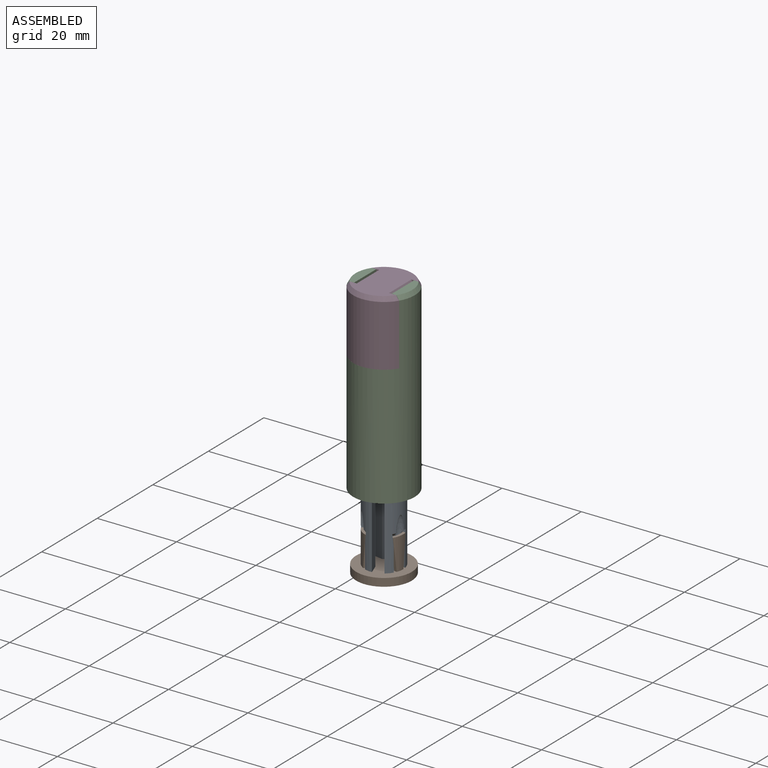
[diagram: assembled view]
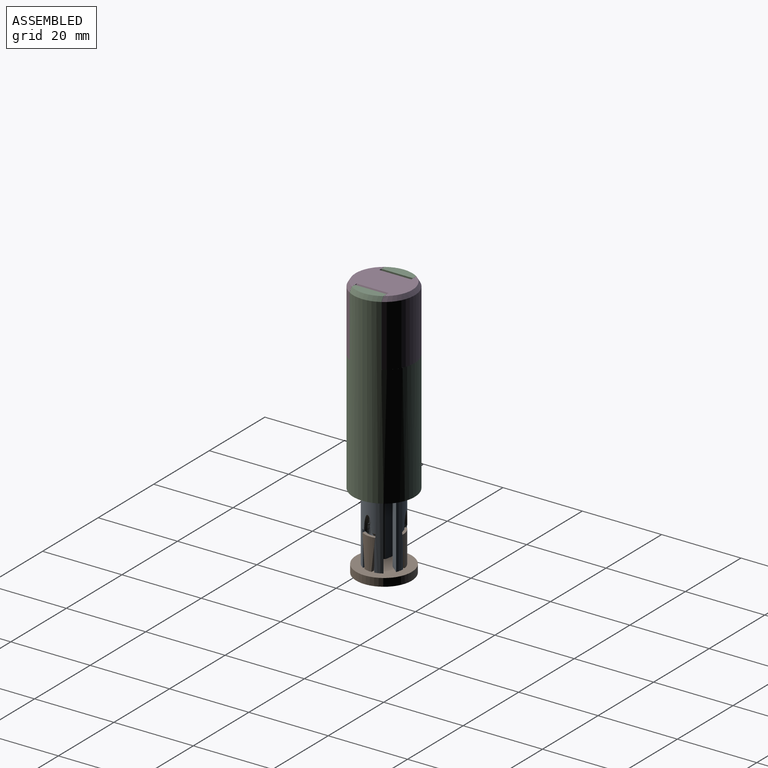
[diagram: assembled view, second angle]
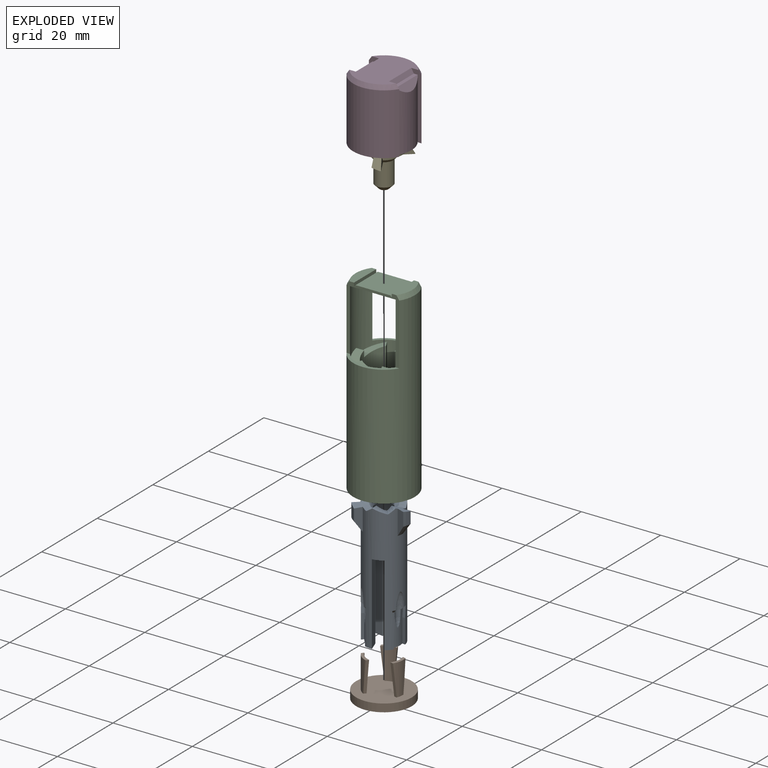
[diagram: exploded view]
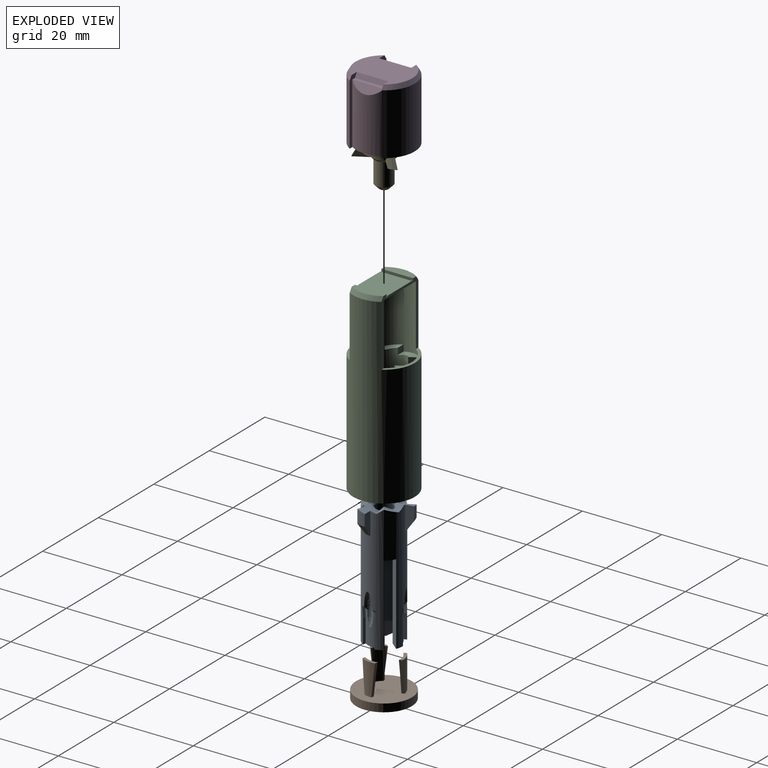
[diagram: exploded view, second angle]
ASSEMBLY  parts=5 mates=4
PART A: 75 faces, bbox 16.7x16x32.9 mm
  f0: cone r=6.78mm half-angle=35deg, axis (0,0,1), area 6.3mm2, adj f1,f2,f3,f10
  f1: cylinder r=6.78mm len=3.39mm, axis (0,0,-1), area 6.7mm2, adj f0,f2,f3,f4
  f2: plane 5.72x1.81mm, normal (-0.41,0.91,0), area 8.5mm2, adj f0,f1,f4,f10
  f3: plane 6.22x1.97mm, normal (0.1,-0.99,0), area 9.5mm2, adj f0,f1,f4,f10
  f4: bspline ~6.75x5.91mm, area 8.7mm2, adj f1,f2,f3,f10,f11,f12,f13,f15
  f5: plane 4.69x4.69mm, normal (0,0,-1), area 9.1mm2, adj f10,f14,f38,f42,f53,f56,f57
  f6: plane 6.4x2.99mm, normal (0,0,-1), area 9.1mm2, adj f10,f14,f34,f41,f48,f51,f52
  f7: plane 6.4x2.99mm, normal (0,0,-1), area 9.1mm2, adj f10,f14,f35,f37,f43,f46,f47
  f8: plane 1.44x0.84mm, normal (0,0,1), area 0mm2, adj f10,f15,f18
  f9: cylinder r=3.15mm len=2.18mm, axis (0,0,-1), area 1mm2, adj f13,f15,f18
  f10: cylinder r=4.8mm len=32mm, axis (0,0,-1), area 640.7mm2, adj f0,f2,f3,f4,f5,f6,f7,f8
  f11: plane 1.65x0.02mm, normal (0,0,1), area 0mm2, adj f4,f10,f12,f33
  f12: cylinder r=3.15mm len=2.35mm, axis (0,0,-1), area 1mm2, adj f4,f11,f13,f33
  f13: cone r=3.15mm half-angle=45deg, axis (0,0,1), area 19.6mm2, adj f4,f9,f12,f14,f15,f17,f18,f19
  f14: cylinder r=2.3mm len=30.34mm, axis (0,0,-1), area 261.7mm2, adj f5,f6,f7,f13,f34,f35,f36,f37
  f15: bspline ~2.31x2.24mm, area 3mm2, adj f4,f8,f9,f10,f13
  f16: plane 1.44x0.85mm, normal (0,0,1), area 0mm2, adj f10,f19,f22
  f17: cylinder r=3.15mm len=1.88mm, axis (0,0,-1), area 1mm2, adj f13,f19,f22
  f18: bspline ~3.22x2.31mm, area 5mm2, adj f8,f9,f10,f13,f19
  f19: bspline ~6.52x5.46mm, area 3mm2, adj f10,f13,f16,f17,f18
  f20: plane 1.66x0.02mm, normal (0,0,1), area 0mm2, adj f10,f23,f26
  f21: cylinder r=3.15mm len=2.35mm, axis (0,0,-1), area 1mm2, adj f13,f23,f26
  f22: bspline ~6.72x6.62mm, area 8.7mm2, adj f10,f13,f16,f17,f23,f72,f73,f74
  f23: bspline ~2.1x1.64mm, area 3mm2, adj f10,f13,f20,f21,f22
  f24: plane 1.44x0.84mm, normal (0,0,1), area 0mm2, adj f10,f27,f30
  f25: cylinder r=3.15mm len=2.18mm, axis (0,0,-1), area 1mm2, adj f13,f27,f30
  f26: bspline ~6.75x5.91mm, area 5mm2, adj f10,f13,f20,f21,f27
  f27: bspline ~2.31x2.24mm, area 3mm2, adj f10,f13,f24,f25,f26
  f28: plane 1.44x0.84mm, normal (0,0,1), area 0mm2, adj f10,f29,f31,f32
  f29: cylinder r=3.15mm len=1.88mm, axis (0,0,-1), area 1mm2, adj f13,f28,f31,f32
  f30: bspline ~4.55x4.29mm, area 8.7mm2, adj f10,f13,f24,f25,f31,f68,f69,f70
  f31: bspline ~6.52x5.46mm, area 3mm2, adj f10,f13,f28,f29,f30
  f32: bspline ~6.72x6.62mm, area 5mm2, adj f10,f13,f28,f29,f33
  f33: bspline ~2.1x1.64mm, area 3mm2, adj f10,f11,f12,f13,f32
  f34: plane 20.42x1.94mm, normal (-0.71,-0.71,0), area 56mm2, adj f6,f10,f14,f36
  f35: plane 20.42x1.94mm, normal (0.71,0.71,0), area 56mm2, adj f7,f10,f14,f36
  f36: plane 3.85x3.85mm, normal (0,0,-1), area 7mm2, adj f10,f14,f34,f35
  f37: plane 20.42x2.65mm, normal (-0.26,0.97,0), area 56mm2, adj f7,f10,f14,f39
  f38: plane 20.42x2.65mm, normal (0.26,-0.97,0), area 56mm2, adj f5,f10,f14,f39
  f39: plane 3.35x3.32mm, normal (0,0,-1), area 7mm2, adj f10,f14,f37,f38
  f40: plane 3.35x3.32mm, normal (0,0,-1), area 7mm2, adj f10,f14,f41,f42
  f41: plane 20.42x2.65mm, normal (-0.97,0.26,0), area 56mm2, adj f6,f10,f14,f40
  f42: plane 20.42x2.65mm, normal (0.97,-0.26,0), area 56mm2, adj f5,f10,f14,f40
  f43: plane 6x0.78mm, normal (0.97,-0.26,0), area 4.9mm2, adj f7,f10,f44,f47
  f44: plane 2.82x0.96mm, normal (0.96,-0.26,0.1), area 2mm2, adj f10,f43,f47,f66
  f45: plane 2.82x0.85mm, normal (-0.96,0.26,0.1), area 2mm2, adj f10,f46,f47,f65
  f46: plane 6x0.78mm, normal (-0.97,0.26,0), area 4.9mm2, adj f7,f10,f45,f47
  f47: cylinder r=4.05mm len=8.05mm, axis (0,0,-1), area 23mm2, adj f7,f43,f44,f45,f46,f60,f65,f66
  f48: plane 6x0.78mm, normal (-0.26,0.97,0), area 4.9mm2, adj f6,f10,f49,f52
  f49: plane 2.82x0.85mm, normal (-0.26,0.96,0.1), area 2mm2, adj f10,f48,f52,f64
  f50: plane 2.82x0.96mm, normal (0.26,-0.96,0.1), area 2mm2, adj f10,f51,f52,f63
  f51: plane 6x0.78mm, normal (0.26,-0.97,0), area 4.9mm2, adj f6,f10,f50,f52
  f52: cylinder r=4.05mm len=8.05mm, axis (0,0,-1), area 23mm2, adj f6,f48,f49,f50,f51,f59,f63,f64
  f53: plane 6x0.57mm, normal (-0.71,-0.71,0), area 4.9mm2, adj f5,f10,f54,f57
  f54: plane 2.82x0.82mm, normal (-0.7,-0.7,0.1), area 2mm2, adj f10,f53,f57,f62
  f55: plane 2.82x0.82mm, normal (0.7,0.7,0.1), area 2mm2, adj f10,f56,f57,f61
  f56: plane 6x0.57mm, normal (0.71,0.71,0), area 4.9mm2, adj f5,f10,f55,f57
  f57: cylinder r=4.05mm len=8.05mm, axis (0,0,-1), area 23mm2, adj f5,f53,f54,f55,f56,f58,f61,f62
  f58: revolved ~8.35x2.02mm, area 18.2mm2, adj f10,f57,f61,f62
  f59: revolved ~8.35x2.36mm, area 18.2mm2, adj f10,f52,f63,f64
  f60: revolved ~8.35x2.36mm, area 18.2mm2, adj f10,f47,f65,f66
  f61: cone r=4mm half-angle=45deg, axis (0,0,1), area 1mm2, adj f10,f55,f57,f58
  f62: cone r=4mm half-angle=45deg, axis (0,0,1), area 1mm2, adj f10,f54,f57,f58
  f63: cone r=4mm half-angle=45deg, axis (0,0,1), area 1mm2, adj f10,f50,f52,f59
  f64: cone r=4mm half-angle=45deg, axis (0,0,1), area 1mm2, adj f10,f49,f52,f59
  f65: cone r=4mm half-angle=45deg, axis (0,0,1), area 1mm2, adj f10,f45,f47,f60
  f66: cone r=4mm half-angle=45deg, axis (0,0,1), area 1mm2, adj f10,f44,f47,f60
  f67: cone r=6.78mm half-angle=35deg, axis (0,0,1), area 6.3mm2, adj f10,f68,f69,f70
  f68: cylinder r=6.78mm len=3.39mm, axis (0,0,-1), area 6.7mm2, adj f30,f67,f69,f70
  f69: plane 5.72x1.97mm, normal (0.99,-0.1,0), area 8.5mm2, adj f10,f30,f67,f68
  f70: plane 6.22x1.81mm, normal (-0.91,0.41,0), area 9.5mm2, adj f10,f30,f67,f68
  f71: cone r=6.78mm half-angle=35deg, axis (0,0,1), area 6.3mm2, adj f10,f72,f73,f74
  f72: cylinder r=6.78mm len=3.39mm, axis (0,0,-1), area 6.7mm2, adj f22,f71,f73,f74
  f73: plane 5.72x1.6mm, normal (-0.59,-0.81,0), area 8.5mm2, adj f10,f22,f71,f72
  f74: plane 6.22x1.6mm, normal (0.81,0.59,0), area 9.5mm2, adj f10,f22,f71,f72
PART B: 18 faces, bbox 14x14x10 mm
  f0: plane 14x14mm, normal (0,0,1), area 149.7mm2, adj f2,f4,f5,f6,f7,f9,f10,f11
  f1: plane 14x14mm, normal (0,0,-1), area 153.9mm2, adj f2
  f2: cylinder r=7mm len=14mm, axis (0,0,1), area 88mm2, adj f0,f1
  f3: plane 3.12x3.12mm, normal (0,0,1), area 2.6mm2, adj f4,f5,f6,f7
  f4: plane 7.95x1.32mm, normal (0.7,0.7,-0.1), area 5.9mm2, adj f0,f3,f6,f7
  f5: plane 7.95x1.32mm, normal (-0.7,-0.7,-0.1), area 5.9mm2, adj f0,f3,f6,f7
  f6: cylinder r=4.8mm len=7.95mm, axis (0,0,-1), area 22.7mm2, adj f0,f3,f4,f5
  f7: cylinder r=4.1mm len=7.95mm, axis (0,0,-1), area 22.9mm2, adj f0,f3,f4,f5
  f8: plane 3.72x1.73mm, normal (0,0,1), area 2.6mm2, adj f9,f10,f11,f12
  f9: plane 7.95x1.21mm, normal (-0.96,0.26,-0.1), area 5.9mm2, adj f0,f8,f11,f12
  f10: plane 7.95x1.07mm, normal (0.96,-0.26,-0.1), area 5.9mm2, adj f0,f8,f11,f12
  f11: cylinder r=4.8mm len=7.95mm, axis (0,0,-1), area 22.7mm2, adj f0,f8,f9,f10
  f12: cylinder r=4.1mm len=7.95mm, axis (0,0,-1), area 22.9mm2, adj f0,f8,f9,f10
  f13: cylinder r=4.1mm len=7.95mm, axis (0,0,-1), area 22.9mm2, adj f0,f15,f16,f17
  f14: cylinder r=4.8mm len=7.95mm, axis (0,0,-1), area 22.7mm2, adj f0,f15,f16,f17
  f15: plane 3.72x1.73mm, normal (0,0,1), area 2.6mm2, adj f13,f14,f16,f17
  f16: plane 7.95x1.21mm, normal (-0.26,0.96,-0.1), area 5.9mm2, adj f0,f13,f14,f15
  f17: plane 7.95x1.07mm, normal (0.26,-0.96,-0.1), area 5.9mm2, adj f0,f13,f14,f15
PART C: 49 faces, bbox 15.5x15.5x47 mm
  f0: plane 12.5x8mm, normal (0,0,-1), area 99.2mm2, adj f1,f45,f46,f47,f48
  f1: plane 16.52x13.3mm, normal (0,1,0), area 36.4mm2, adj f0,f2,f3,f4,f5,f6,f7,f8
  f2: plane 13.28x3.75mm, normal (0,0,1), area 11mm2, adj f1,f12,f47
  f3: cone r=7.75mm half-angle=30deg, axis (0,0,-1), area 10.4mm2, adj f1,f4,f12,f46
  f4: plane 8x2.37mm, normal (0,0,1), area 15.8mm2, adj f1,f3,f5,f46
  f5: plane 8x0.87mm, normal (-1,0,0), area 6.9mm2, adj f1,f4,f6,f46
  f6: plane 8x0.4mm, normal (0.71,0,0.71), area 4.5mm2, adj f1,f5,f7,f46
  f7: plane 8.72x8mm, normal (0,0,1), area 69.8mm2, adj f1,f6,f8,f46
  f8: plane 8x0.4mm, normal (-0.71,0,0.71), area 4.5mm2, adj f1,f7,f9,f46
  f9: plane 8x0.87mm, normal (1,0,0), area 6.9mm2, adj f1,f8,f10,f46
  f10: plane 8x2.37mm, normal (0,0,1), area 15.8mm2, adj f1,f9,f11,f46
  f11: cone r=7.75mm half-angle=30deg, axis (0,0,-1), area 10.4mm2, adj f1,f10,f12,f46
  f12: cylinder r=7.75mm len=45.93mm, axis (0,0,-1), area 1744.6mm2, adj f1,f2,f3,f11,f13,f44,f46
  f13: plane 15.5x15.5mm, normal (0,0,-1), area 144.6mm2, adj f12,f14,f16,f17,f18,f19,f20,f21
  f14: plane 3.16x2.65mm, normal (-0.77,0.64,0), area 10.3mm2, adj f13,f15,f16,f21
  f15: plane 9.49x9.07mm, normal (0,0,1), area 34.4mm2, adj f14,f16,f17,f18,f19,f20,f21
  f16: plane 4.06x2.5mm, normal (0.17,0.98,0), area 10.3mm2, adj f13,f14,f15,f21
  f17: plane 4.06x2.5mm, normal (-0.17,-0.98,0), area 10.3mm2, adj f13,f15,f18,f21
  f18: plane 3.87x2.5mm, normal (-0.94,-0.34,0), area 10.3mm2, adj f13,f15,f17,f21
  f19: plane 3.87x2.5mm, normal (0.94,0.34,0), area 10.3mm2, adj f13,f15,f20,f21
  f20: plane 3.16x2.65mm, normal (0.77,-0.64,0), area 10.3mm2, adj f13,f15,f19,f21
  f21: cylinder r=5mm len=30mm, axis (0,0,-1), area 790.5mm2, adj f13,f14,f15,f16,f17,f18,f19,f20
  f22: plane 20.81x1.53mm, normal (0.64,-0.77,0), area 38.8mm2, adj f21,f23,f24,f43,f47
  f23: plane 1.96x1.69mm, normal (0,0,1), area 0.5mm2, adj f22,f24,f25,f47
  f24: cone r=6.8mm half-angle=35deg, axis (0,0,1), area 6.5mm2, adj f21,f22,f23,f25
  f25: plane 21.91x1.74mm, normal (-0.87,0.5,0), area 41mm2, adj f21,f23,f24,f26,f47
  f26: bspline ~7x2.66mm, area 13mm2, adj f21,f25,f27,f47
  f27: plane 1.74x1.63mm, normal (-0.87,-0.5,0), area 3.2mm2, adj f21,f26,f28,f47
  f28: bspline ~4.35x4.08mm, area 8.7mm2, adj f21,f27,f29,f47
  f29: plane 20.81x1.88mm, normal (0.34,0.94,0), area 38.8mm2, adj f21,f28,f30,f31,f47
  f30: plane 2.39x0.61mm, normal (0,0,1), area 0.5mm2, adj f29,f31,f32,f47
  f31: cone r=6.8mm half-angle=35deg, axis (0,0,1), area 6.5mm2, adj f21,f29,f30,f32
  f32: plane 21.91x2.01mm, normal (0,-1,0), area 41mm2, adj f21,f30,f31,f33,f47
  f33: bspline ~9.56x5.01mm, area 13mm2, adj f21,f32,f34,f47
  f34: plane 1.74x1.63mm, normal (0.87,-0.5,0), area 3.2mm2, adj f21,f33,f35,f47
  f35: bspline ~9.56x5.01mm, area 8.7mm2, adj f21,f34,f36,f47
  f36: plane 20.81x1.97mm, normal (-0.98,-0.17,0), area 38.8mm2, adj f21,f35,f37,f38,f47
  f37: plane 2.32x1mm, normal (0,0,1), area 0.5mm2, adj f36,f38,f39,f47
  f38: cone r=6.8mm half-angle=35deg, axis (0,0,1), area 6.5mm2, adj f21,f36,f37,f39
  f39: plane 21.91x1.74mm, normal (0.87,0.5,0), area 41mm2, adj f21,f37,f38,f40,f47
  f40: bspline ~6.06x4.5mm, area 13mm2, adj f21,f39,f41,f47
  f41: plane 2.01x1.63mm, normal (0,1,0), area 3.2mm2, adj f21,f40,f42,f43,f47
  f42: cylinder r=5mm len=0mm, axis (0,0,-1), area 0mm2, adj f41,f43
  f43: bspline ~4.5x3.17mm, area 8.7mm2, adj f21,f22,f41,f42,f47
  f44: plane 13.28x3.75mm, normal (0,0,1), area 11mm2, adj f12,f46,f47
  f45: plane 6.37x0.78mm, normal (0,0,-1), area 3.2mm2, adj f0,f47
  f46: plane 16.52x13.3mm, normal (0,-1,0), area 36.4mm2, adj f0,f3,f4,f5,f6,f7,f8,f9
  f47: cylinder r=7mm len=35.26mm, axis (0,0,-1), area 452.1mm2, adj f0,f1,f2,f22,f23,f25,f26,f27
  f48: plane 6.37x0.78mm, normal (0,0,-1), area 3.2mm2, adj f0,f47
PART D: 28 faces, bbox 17.7x19.2x20.2 mm
  f0: cylinder r=7.75mm len=15.43mm, axis (0,0,1), area 245.1mm2, adj f2,f11,f19,f27
  f1: cylinder r=7.75mm len=15.43mm, axis (0,0,1), area 245.1mm2, adj f3,f6,f18,f26
  f2: cone r=7.75mm half-angle=30deg, axis (0,0,-1), area 18.3mm2, adj f0,f4,f19,f27
  f3: cone r=7.75mm half-angle=30deg, axis (0,0,-1), area 18.3mm2, adj f1,f4,f18,f26
  f4: plane 14.27x11.78mm, normal (0,0,1), area 117mm2, adj f2,f3,f14,f16,f17,f18,f19,f22
  f5: cone r=7mm half-angle=30deg, axis (0,0,-1), area 133mm2, adj f6,f10,f11,f12,f18,f19,f20,f26
  f6: plane 13.25x3.73mm, normal (0,0,-1), area 11mm2, adj f1,f5,f18,f26
  f7: plane 6.2x6.2mm, normal (0,0,-1), area 30.2mm2, adj f8
  f8: cylinder r=3.1mm len=7mm, axis (0,0,1), area 136.3mm2, adj f7,f9
  f9: plane 10.5x10.5mm, normal (0,0,-1), area 56.4mm2, adj f8,f10
  f10: cylinder r=5.25mm len=12mm, axis (0,0,1), area 395.8mm2, adj f5,f9
  f11: plane 13.25x3.73mm, normal (0,0,-1), area 11mm2, adj f0,f5,f19,f27
  f12: cylinder r=6.95mm len=15.29mm, axis (0,0,-1), area 131.3mm2, adj f5,f13,f18,f19
  f13: plane 11.72x5.5mm, normal (0.82,0,0.57), area 12.3mm2, adj f12,f15
  f14: plane 8.05x1.12mm, normal (0.87,0,0.5), area 10.4mm2, adj f4,f15,f16,f17
  f15: plane 8.05x0.95mm, normal (0,0,1), area 7.6mm2, adj f13,f14,f16,f17,f18,f19
  f16: plane 1.12x0.71mm, normal (0,1,0), area 0.4mm2, adj f4,f14,f15,f19
  f17: plane 1.12x0.71mm, normal (0,-1,0), area 0.4mm2, adj f4,f14,f15,f18
  f18: plane 16.51x1.92mm, normal (0,-1,0), area 16.5mm2, adj f1,f3,f4,f5,f6,f12,f15,f17
  f19: plane 16.51x1.92mm, normal (0,1,0), area 16.5mm2, adj f0,f2,f4,f5,f11,f12,f15,f16
  f20: cylinder r=6.95mm len=15.29mm, axis (0,0,-1), area 120.9mm2, adj f5,f24,f26,f27
  f21: plane 8.05x0.95mm, normal (0,0,1), area 7.7mm2, adj f22,f23,f24,f25,f26,f27
  f22: plane 1.12x0.71mm, normal (0,1,0), area 0.4mm2, adj f4,f21,f25,f27
  f23: plane 1.12x0.71mm, normal (0,-1,0), area 0.4mm2, adj f4,f21,f25,f26
  f24: plane 8.05x1.83mm, normal (-0.82,0,0.57), area 12.3mm2, adj f20,f21
  f25: plane 8.05x1.12mm, normal (-0.87,0,0.5), area 10.4mm2, adj f4,f21,f22,f23
  f26: plane 16.51x1.92mm, normal (0,-1,0), area 16.5mm2, adj f1,f3,f4,f5,f6,f20,f21,f23
  f27: plane 16.51x1.92mm, normal (0,1,0), area 16.5mm2, adj f0,f2,f4,f5,f11,f20,f21,f22
PART E: 29 faces, bbox 13.2x13.4x10.4 mm
  f0: bspline ~5.78x5.48mm, area 6.3mm2, adj f1,f2,f13,f28
  f1: plane 2.98x2.78mm, normal (0.74,0.67,0), area 5.1mm2, adj f0,f13,f14,f15,f16,f28
  f2: plane 3.9x3.46mm, normal (-0.5,-0.87,0), area 7.1mm2, adj f0,f21,f22,f23,f24,f28
  f3: bspline ~5.93x5.16mm, area 6.3mm2, adj f4,f5,f9,f27
  f4: plane 3.66x2.98mm, normal (0.21,-0.98,0), area 5.1mm2, adj f3,f9,f10,f11,f12,f27
  f5: plane 3.9x3.46mm, normal (-0.5,0.87,0), area 7.1mm2, adj f3,f13,f14,f15,f16,f27
  f6: bspline ~5.68x4.81mm, area 6.3mm2, adj f7,f8,f21,f26
  f7: plane 4.5x3.46mm, normal (1,0,0), area 7.1mm2, adj f6,f9,f10,f11,f12,f26
  f8: plane 3.55x2.98mm, normal (-0.95,0.31,0), area 5.1mm2, adj f6,f21,f22,f23,f24,f26
  f9: cone r=2.3mm half-angle=45deg, axis (0,0,1), area 5.7mm2, adj f3,f4,f7,f10,f20
  f10: cylinder r=3.1mm len=3.75mm, axis (0,0,1), area 6.4mm2, adj f4,f7,f9,f11
  f11: plane 5.8x4.8mm, normal (0,0,-1), area 11.9mm2, adj f4,f7,f10,f12
  f12: cylinder r=4.8mm len=5.8mm, axis (0,0,1), area 12.8mm2, adj f4,f7,f11,f25
  f13: cone r=2.3mm half-angle=45deg, axis (0,0,1), area 5.7mm2, adj f0,f1,f5,f14,f20
  f14: cylinder r=3.1mm len=4.77mm, axis (0,0,1), area 6.4mm2, adj f1,f5,f13,f15
  f15: plane 7.37x3.25mm, normal (0,0,-1), area 11.9mm2, adj f1,f5,f14,f16
  f16: cylinder r=4.8mm len=7.37mm, axis (0,0,1), area 12.8mm2, adj f1,f5,f15,f25
  f17: plane 2.2x2.2mm, normal (0,0,-1), area 3.8mm2, adj f18
  f18: cone r=1.1mm half-angle=45deg, axis (0,0,1), area 16.1mm2, adj f17,f19
  f19: cylinder r=2.2mm len=5.81mm, axis (0,0,1), area 80.4mm2, adj f18,f20
  f20: plane 4.6x4.6mm, normal (0,0,-1), area 1.4mm2, adj f9,f13,f19,f21
  f21: cone r=2.3mm half-angle=45deg, axis (0,0,1), area 5.7mm2, adj f2,f6,f8,f20,f22
  f22: cylinder r=3.1mm len=4.51mm, axis (0,0,1), area 6.4mm2, adj f2,f8,f21,f23
  f23: plane 6.97x3.84mm, normal (0,0,-1), area 11.9mm2, adj f2,f8,f22,f24
  f24: cylinder r=4.8mm len=6.97mm, axis (0,0,1), area 12.8mm2, adj f2,f8,f23,f25
  f25: plane 9.6x9.6mm, normal (0,0,1), area 72.4mm2, adj f12,f16,f24,f26,f27,f28
  f26: cone r=6.8mm half-angle=30deg, axis (0,0,-1), area 6.7mm2, adj f6,f7,f8,f25
  f27: cone r=6.8mm half-angle=30deg, axis (0,0,-1), area 6.7mm2, adj f3,f4,f5,f25
  f28: cone r=6.8mm half-angle=30deg, axis (0,0,-1), area 6.7mm2, adj f0,f1,f2,f25
PLACE A rot(axis=(0,0,-1),25deg) t=(0.17,0.19,-33.65)mm
PLACE B rot(axis=(0,0,-1),25deg) t=(0.17,0.19,-41.65)mm
PLACE C t=(0.17,0.19,-13.37)mm fixed
PLACE D t=(0.17,0.19,7.13)mm
PLACE E rot(axis=(0,0,1),29.6deg) t=(0.17,0.19,5.06)mm
MATE fastened B.f2 <-> A.f61  axis (0,0,1) through (0.17,0.19,-40.65)mm
MATE cylindrical E.f10 <-> C.f21  axis (0,0,-1) through (0.17,0.19,-1.86)mm
MATE cylindrical A.f13 <-> C.f3  axis (0,0,-1) through (0.17,0.19,-10.31)mm
MATE fastened D.f0 <-> C.f21  axis (0,0,-1) through (0.17,0.19,7.13)mm
